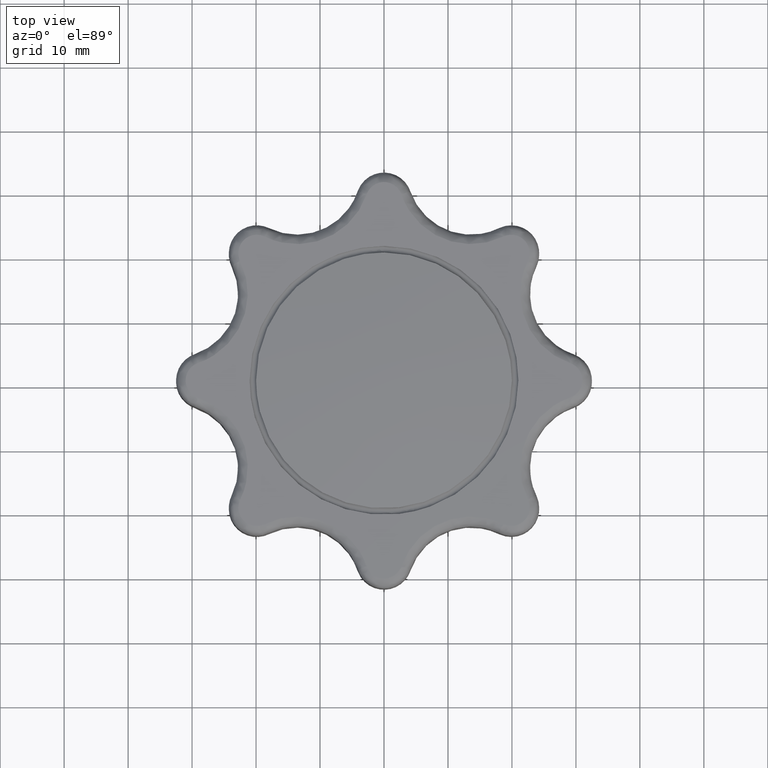
[diagram: clean part render]
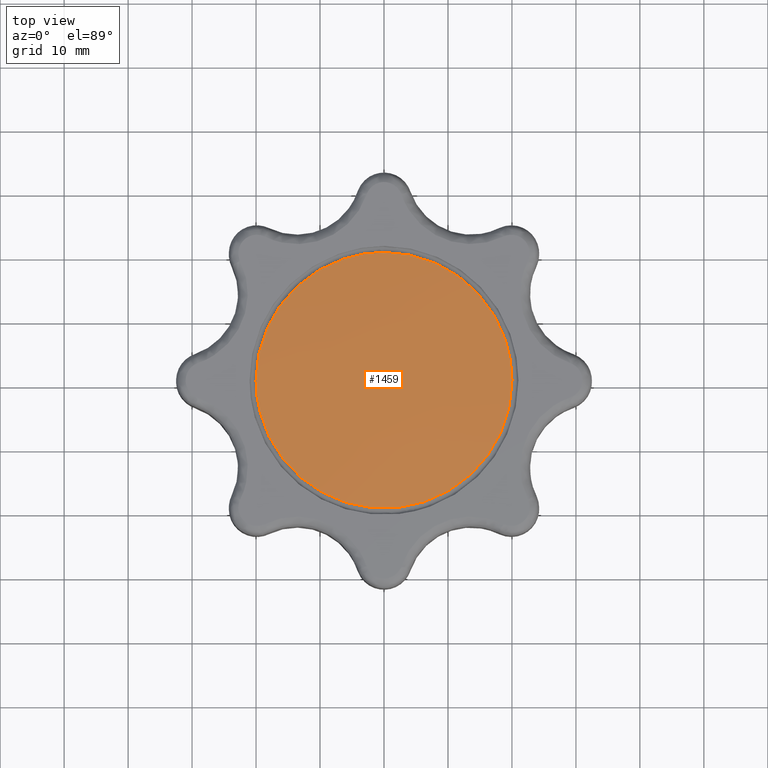
[diagram: same view with one face highlighted and labeled with its STEP entity id]
A machine part, top view. The second image highlights one B-rep face of the part: STEP entity #1459.
In plain terms, the highlighted face is a freeform B-spline surface patch.
Its self-contained STEP definition (entity closure, byte-faithful):
#1234=CARTESIAN_POINT('',(2.309284586546929,-19.866232775701000,16.999999998373539));
#1235=VERTEX_POINT('',#1234);
#1236=CARTESIAN_POINT('',(-20.0,0.0,17.0));
#1237=VERTEX_POINT('',#1236);
#1238=CARTESIAN_POINT('',(2.309284586546929,-19.866232775701004,16.999999998373539));
#1239=CARTESIAN_POINT('',(1.158516581963046,-20.0,17.000000000000004));
#1240=CARTESIAN_POINT('',(0.0,-20.0,17.0));
#1241=CARTESIAN_POINT('',(-19.999999999999996,-19.999999999999996,17.000000000000004));
#1242=CARTESIAN_POINT('',(-20.0,0.0,17.0));
#1250=(BOUNDED_CURVE()B_SPLINE_CURVE(2,(#1238,#1239,#1240,#1241,#1242),.UNSPECIFIED.,.F.,.U.)B_SPLINE_CURVE_WITH_KNOTS((3,2,3),(0.729999999999907,0.750000000000000,1.0),.UNSPECIFIED.)CURVE()GEOMETRIC_REPRESENTATION_ITEM()RATIONAL_B_SPLINE_CURVE((0.956886118190477,0.976568542494815,1.0,0.707106781186548,1.0))REPRESENTATION_ITEM(''));
#1251=EDGE_CURVE('',#1235,#1237,#1250,.T.);
#1253=CARTESIAN_POINT('',(0.0,20.0,16.999999998295522));
#1254=VERTEX_POINT('',#1253);
#1255=CARTESIAN_POINT('',(-20.0,0.0,17.0));
#1256=CARTESIAN_POINT('',(-20.0,20.000000000000014,17.000000000000007));
#1257=CARTESIAN_POINT('',(0.0,20.0,16.999999998295522));
#1265=(BOUNDED_CURVE()B_SPLINE_CURVE(2,(#1255,#1256,#1257),.UNSPECIFIED.,.F.,.U.)B_SPLINE_CURVE_WITH_KNOTS((3,3),(0.0,0.250000000000000),.UNSPECIFIED.)CURVE()GEOMETRIC_REPRESENTATION_ITEM()RATIONAL_B_SPLINE_CURVE((1.0,0.707106781186547,1.0))REPRESENTATION_ITEM(''));
#1266=EDGE_CURVE('',#1237,#1254,#1265,.T.);
#1368=CARTESIAN_POINT('',(20.0,0.0,17.0));
#1369=VERTEX_POINT('',#1368);
#1370=CARTESIAN_POINT('',(20.0,0.0,17.0));
#1371=CARTESIAN_POINT('',(20.0,-17.809834016529120,17.000000000000007));
#1372=CARTESIAN_POINT('',(2.309284586546929,-19.866232775700997,16.999999998373536));
#1380=(BOUNDED_CURVE()B_SPLINE_CURVE(2,(#1370,#1371,#1372),.UNSPECIFIED.,.F.,.U.)B_SPLINE_CURVE_WITH_KNOTS((3,3),(0.500000000000000,0.729999999999908),.UNSPECIFIED.)CURVE()GEOMETRIC_REPRESENTATION_ITEM()RATIONAL_B_SPLINE_CURVE((1.0,0.730538238691732,0.956886118190479))REPRESENTATION_ITEM(''));
#1381=EDGE_CURVE('',#1369,#1235,#1380,.T.);
#1413=CARTESIAN_POINT('',(0.0,20.0,16.999999998295522));
#1414=CARTESIAN_POINT('',(19.999999999999996,19.999999999999996,17.000000000000004));
#1415=CARTESIAN_POINT('',(20.0,0.0,17.0));
#1423=(BOUNDED_CURVE()B_SPLINE_CURVE(2,(#1413,#1414,#1415),.UNSPECIFIED.,.F.,.U.)B_SPLINE_CURVE_WITH_KNOTS((3,3),(0.250000000000000,0.500000000000000),.UNSPECIFIED.)CURVE()GEOMETRIC_REPRESENTATION_ITEM()RATIONAL_B_SPLINE_CURVE((1.0,0.707106781186548,1.0))REPRESENTATION_ITEM(''));
#1424=EDGE_CURVE('',#1254,#1369,#1423,.T.);
#1429=CARTESIAN_POINT('',(-21.920397290926566,-21.920291057158686,15.588987635803118));
#1430=CARTESIAN_POINT('',(-10.993247253321600,-21.986387952545517,16.790864679744253));
#1431=CARTESIAN_POINT('',(10.993248294484456,-21.986387952545517,16.790864679744253));
#1432=CARTESIAN_POINT('',(21.920399354509879,-21.920291044676357,15.588987408829636));
#1433=CARTESIAN_POINT('',(-21.986493864053394,-10.993193654979439,16.790852995228853));
#1434=CARTESIAN_POINT('',(-11.026495445595691,-11.026442007414710,17.999999999999940));
#1435=CARTESIAN_POINT('',(11.026496489907460,-11.026442007414710,17.999999999999940));
#1436=CARTESIAN_POINT('',(21.986495933821256,-10.993193648700560,16.790852766884505));
#1437=CARTESIAN_POINT('',(-21.986493864053394,10.993245438603534,16.790852995228853));
#1438=CARTESIAN_POINT('',(-11.026495445595691,11.026493947655750,17.999999999999940));
#1439=CARTESIAN_POINT('',(11.026496489907460,11.026493947655750,17.999999999999940));
#1440=CARTESIAN_POINT('',(21.986495933821256,10.993245432324645,16.790852766884505));
#1441=CARTESIAN_POINT('',(-21.920396670099052,21.920393692232015,15.588976347001797));
#1442=CARTESIAN_POINT('',(-10.993246941033023,21.986490895219745,16.790853322761386));
#1443=CARTESIAN_POINT('',(10.993247982195848,21.986490895219745,16.790853322761386));
#1444=CARTESIAN_POINT('',(21.920398733682308,21.920393679749630,15.588976120028317));
#1452=(BOUNDED_SURFACE()B_SPLINE_SURFACE(2,2,((#1429,#1433,#1437,#1441),(#1430,#1434,#1438,#1442),(#1431,#1435,#1439,#1443),(#1432,#1436,#1440,#1444)),.UNSPECIFIED.,.F.,.F.,.U.)B_SPLINE_SURFACE_WITH_KNOTS((3,1,3),(3,1,3),(68.143931287384035,89.631529744180938,111.119130236053490),(68.144035423660284,89.631529744180952,111.119125281906090),.UNSPECIFIED.)GEOMETRIC_REPRESENTATION_ITEM()RATIONAL_B_SPLINE_SURFACE(((1.006048868481033,1.003024448897998,1.003024448897998,1.006048896974259),(1.003024419583035,1.0,1.0,1.003024448076261),(1.003024419583035,1.0,1.0,1.003024448076261),(1.006048869053919,1.003024449470885,1.003024449470885,1.006048897547145)))REPRESENTATION_ITEM('')SURFACE());
#1453=ORIENTED_EDGE('',*,*,#1251,.F.);
#1454=ORIENTED_EDGE('',*,*,#1381,.F.);
#1455=ORIENTED_EDGE('',*,*,#1424,.F.);
#1456=ORIENTED_EDGE('',*,*,#1266,.F.);
#1457=EDGE_LOOP('',(#1453,#1454,#1455,#1456));
#1458=FACE_OUTER_BOUND('',#1457,.T.);
#1459=ADVANCED_FACE('',(#1458),#1452,.T.);